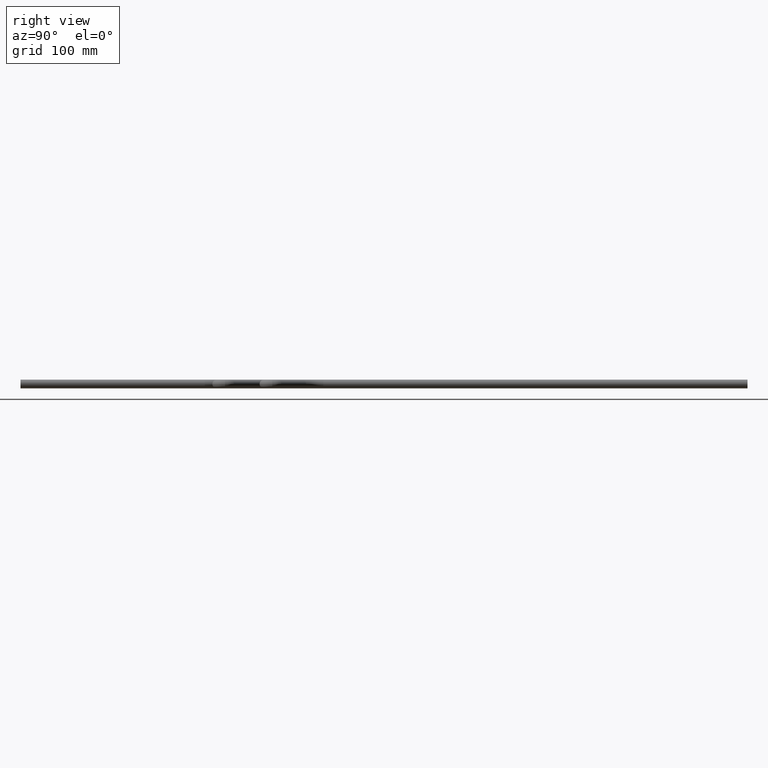
[diagram: clean part render]
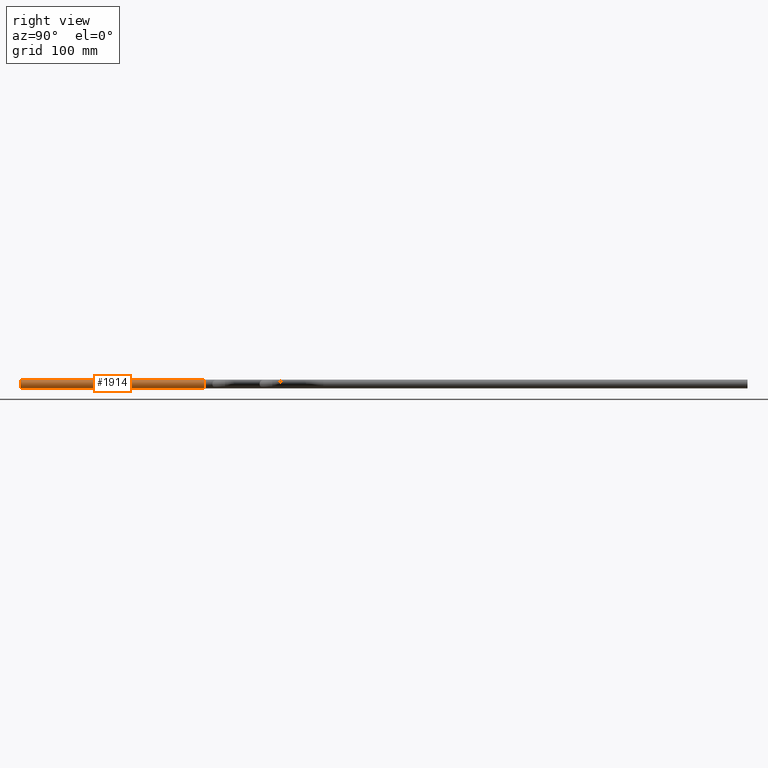
[diagram: same view with one face highlighted and labeled with its STEP entity id]
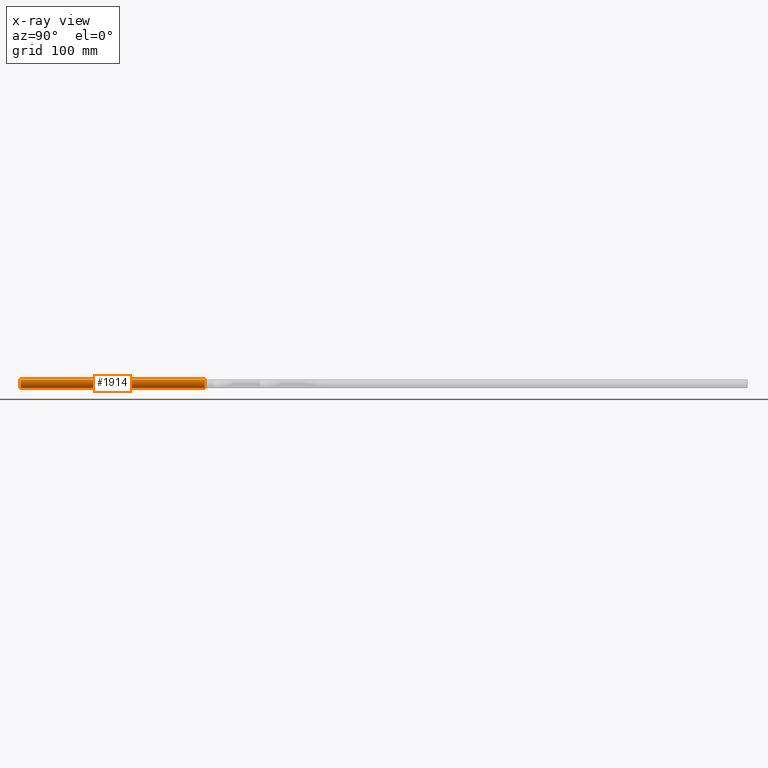
[diagram: x-ray of the same camera — body ghosted, the highlighted face saturated]
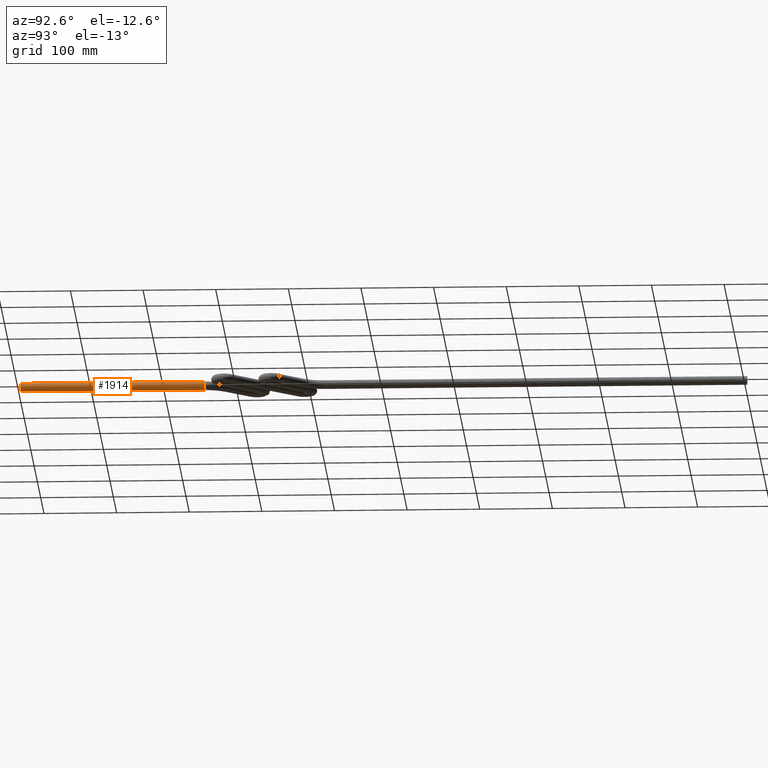
[diagram: same view with one face highlighted and labeled with its STEP entity id]
A machine part, right view. The second image highlights one B-rep face of the part: STEP entity #1914.
The next image is the same camera in x-ray: the body ghosted, the highlighted face saturated — about 0% of this face is hidden behind the body in this view.
A second angle (auxiliary view) of the same face is appended — the face is thin or edge-on in the first view.
In plain terms, the highlighted cylindrical surface (edge-blend (fillet) strip) has radius 6 mm, axis along (-0, -1, -0).
Its self-contained STEP definition (entity closure, byte-faithful):
#104 = VERTEX_POINT ( 'NONE', #2268 ) ;
#112 = DIRECTION ( 'NONE',  ( 0.0000000000000000000, 1.000000000000000000, 0.0000000000000000000 ) ) ;
#215 = EDGE_LOOP ( 'NONE', ( #2400, #1076, #5184, #1494, #404 ) ) ;
#290 = DIRECTION ( 'NONE',  ( 0.0000000000000000000, 1.000000000000000000, 0.0000000000000000000 ) ) ;
#366 = DIRECTION ( 'NONE',  ( 0.0000000000000000000, 1.000000000000000000, 0.0000000000000000000 ) ) ;
#404 = ORIENTED_EDGE ( 'NONE', *, *, #5703, .F. ) ;
#429 = CIRCLE ( 'NONE', #4627, 6.000000000000000900 ) ;
#802 = CARTESIAN_POINT ( 'NONE',  ( 0.0000000000000000000, 253.4314575050761700, -6.000000000000000900 ) ) ;
#939 = LINE ( 'NONE', #802, #4936 ) ;
#992 = CARTESIAN_POINT ( 'NONE',  ( 6.000000000000000000, 253.4314575050761700, 0.0000000000000000000 ) ) ;
#1076 = ORIENTED_EDGE ( 'NONE', *, *, #3535, .T. ) ;
#1242 = FACE_OUTER_BOUND ( 'NONE', #215, .T. ) ;
#1494 = ORIENTED_EDGE ( 'NONE', *, *, #4331, .F. ) ;
#1914 = ADVANCED_FACE ( 'NONE', ( #1242 ), #5256, .T. ) ;
#2008 = VERTEX_POINT ( 'NONE', #3086 ) ;
#2268 = CARTESIAN_POINT ( 'NONE',  ( 7.347880794884120700E-016, 253.4314575050761700, 6.000000000000000900 ) ) ;
#2400 = ORIENTED_EDGE ( 'NONE', *, *, #5264, .F. ) ;
#2543 = AXIS2_PLACEMENT_3D ( 'NONE', #6733, #4039, #3533 ) ;
#2581 = LINE ( 'NONE', #3244, #5246 ) ;
#3086 = CARTESIAN_POINT ( 'NONE',  ( 0.0000000000000000000, 0.0000000000000000000, -6.000000000000000900 ) ) ;
#3244 = CARTESIAN_POINT ( 'NONE',  ( 7.347880794884120700E-016, 253.4314575050761700, 6.000000000000000900 ) ) ;
#3466 = CARTESIAN_POINT ( 'NONE',  ( 0.0000000000000000000, 253.4314575050761700, 0.0000000000000000000 ) ) ;
#3533 = DIRECTION ( 'NONE',  ( 0.0000000000000000000, 0.0000000000000000000, -1.000000000000000000 ) ) ;
#3535 = EDGE_CURVE ( 'NONE', #104, #5967, #2581, .T. ) ;
#3633 = CARTESIAN_POINT ( 'NONE',  ( 0.0000000000000000000, 253.4314575050761700, 0.0000000000000000000 ) ) ;
#3698 = CARTESIAN_POINT ( 'NONE',  ( 0.0000000000000000000, 0.0000000000000000000, 0.0000000000000000000 ) ) ;
#4000 = DIRECTION ( 'NONE',  ( 0.0000000000000000000, 0.0000000000000000000, 1.000000000000000000 ) ) ;
#4039 = DIRECTION ( 'NONE',  ( -0.0000000000000000000, -1.000000000000000000, -0.0000000000000000000 ) ) ;
#4112 = EDGE_CURVE ( 'NONE', #5967, #2008, #4363, .T. ) ;
#4156 = DIRECTION ( 'NONE',  ( 0.0000000000000000000, 0.0000000000000000000, 1.000000000000000000 ) ) ;
#4225 = DIRECTION ( 'NONE',  ( 0.0000000000000000000, 0.0000000000000000000, 1.000000000000000000 ) ) ;
#4331 = EDGE_CURVE ( 'NONE', #5628, #2008, #939, .T. ) ;
#4363 = CIRCLE ( 'NONE', #6301, 6.000000000000000900 ) ;
#4606 = CIRCLE ( 'NONE', #6918, 6.000000000000000900 ) ;
#4627 = AXIS2_PLACEMENT_3D ( 'NONE', #3466, #112, #4000 ) ;
#4653 = DIRECTION ( 'NONE',  ( -0.0000000000000000000, -1.000000000000000000, -0.0000000000000000000 ) ) ;
#4936 = VECTOR ( 'NONE', #4653, 1000.000000000000000 ) ;
#5184 = ORIENTED_EDGE ( 'NONE', *, *, #4112, .T. ) ;
#5246 = VECTOR ( 'NONE', #6435, 1000.000000000000000 ) ;
#5256 = CYLINDRICAL_SURFACE ( 'NONE', #2543, 6.000000000000000900 ) ;
#5264 = EDGE_CURVE ( 'NONE', #104, #6915, #4606, .T. ) ;
#5615 = CARTESIAN_POINT ( 'NONE',  ( 7.347880794884120700E-016, 0.0000000000000000000, 6.000000000000000900 ) ) ;
#5628 = VERTEX_POINT ( 'NONE', #6552 ) ;
#5703 = EDGE_CURVE ( 'NONE', #6915, #5628, #429, .T. ) ;
#5967 = VERTEX_POINT ( 'NONE', #5615 ) ;
#6301 = AXIS2_PLACEMENT_3D ( 'NONE', #3698, #366, #4225 ) ;
#6435 = DIRECTION ( 'NONE',  ( -0.0000000000000000000, -1.000000000000000000, -0.0000000000000000000 ) ) ;
#6552 = CARTESIAN_POINT ( 'NONE',  ( 0.0000000000000000000, 253.4314575050761700, -6.000000000000000900 ) ) ;
#6733 = CARTESIAN_POINT ( 'NONE',  ( 0.0000000000000000000, 253.4314575050761700, 0.0000000000000000000 ) ) ;
#6915 = VERTEX_POINT ( 'NONE', #992 ) ;
#6918 = AXIS2_PLACEMENT_3D ( 'NONE', #3633, #290, #4156 ) ;